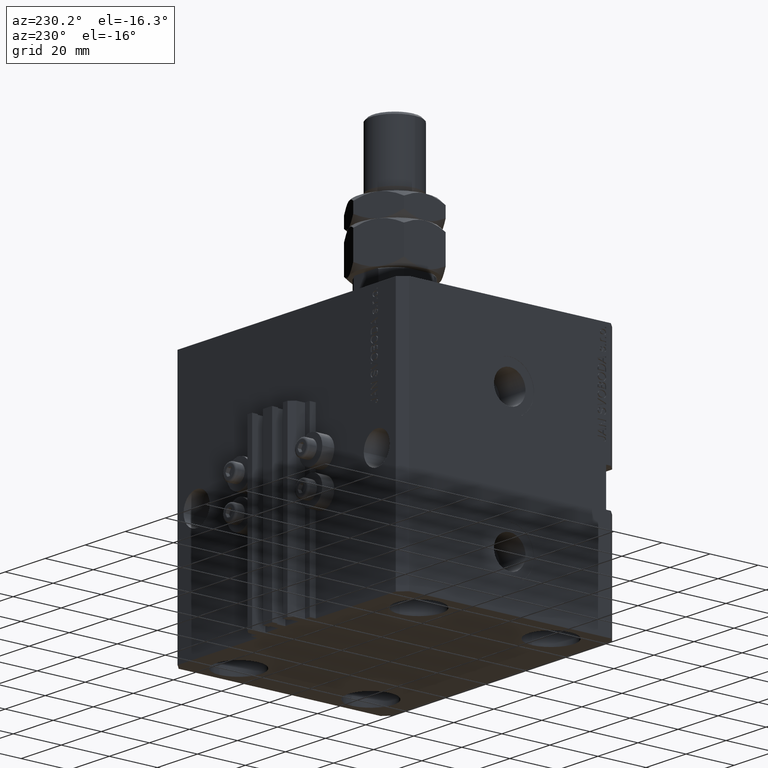
[diagram: clean part render]
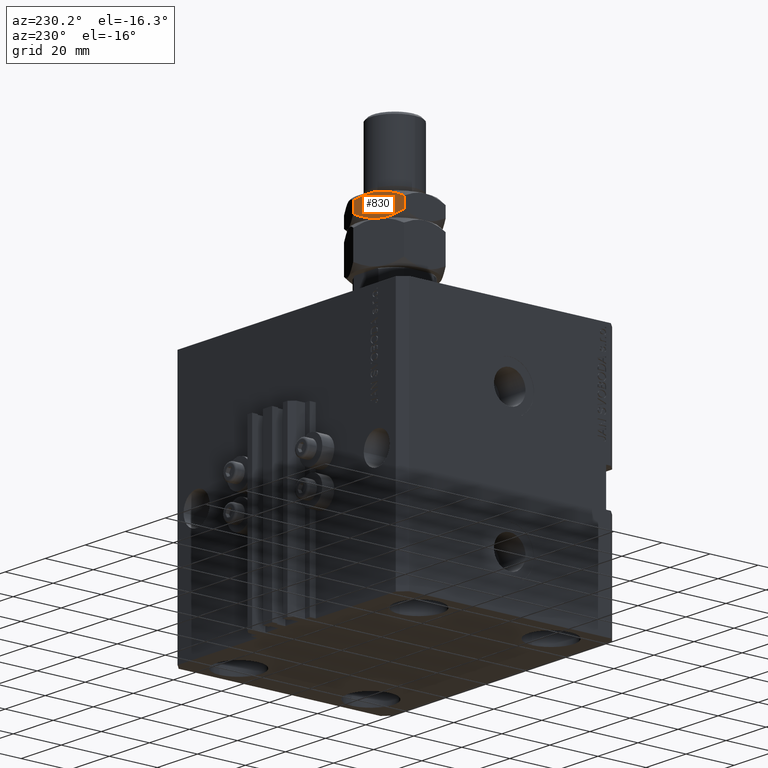
[diagram: same view with one face highlighted and labeled with its STEP entity id]
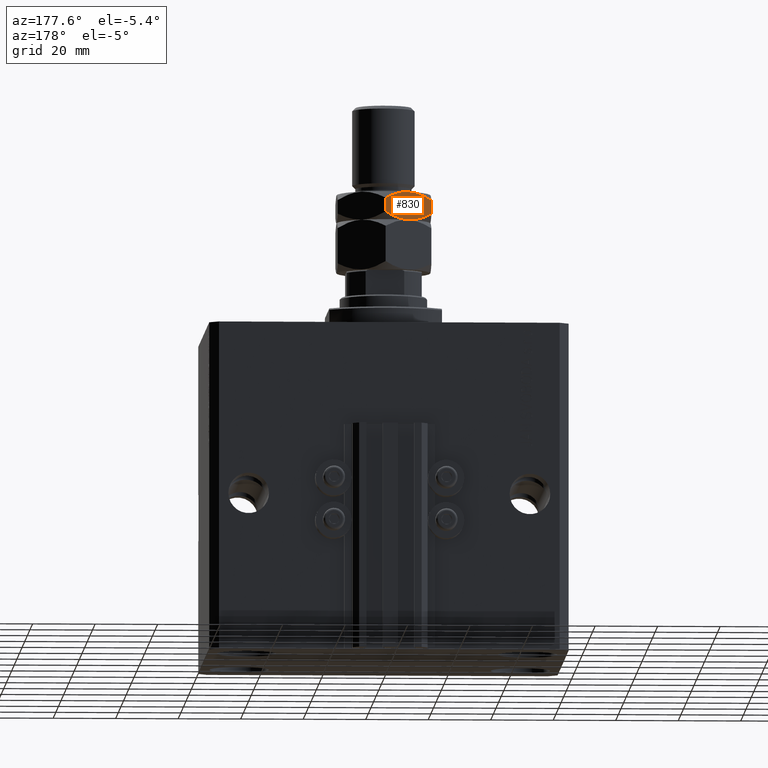
[diagram: same view with one face highlighted and labeled with its STEP entity id]
A machine part, auxiliary view. The second image highlights one B-rep face of the part: STEP entity #830.
A second angle (auxiliary view) of the same face is appended — the face is thin or edge-on in the first view.
In plain terms, the highlighted planar face has unit normal (0.5, -0.866, 0).
Its self-contained STEP definition (entity closure, byte-faithful):
#178 = CARTESIAN_POINT ( 'NONE',  ( -10.11832554202261214, 11.47869010025374514, 16.28380266194628945 ) ) ;
#830 = ADVANCED_FACE ( 'NONE', ( #49670 ), #37505, .F. ) ;
#1076 = CARTESIAN_POINT ( 'NONE',  ( -7.500000000000000000, 12.99038105676657651, 25.00000000000000000 ) ) ;
#1648 = CARTESIAN_POINT ( 'NONE',  ( -4.913081180497401945, 14.48393933357810859, 16.23032992193921942 ) ) ;
#1908 = CARTESIAN_POINT ( 'NONE',  ( -7.499999999999991118, 12.99038105676658184, 16.00000000000000000 ) ) ;
#2450 = CARTESIAN_POINT ( 'NONE',  ( -14.99999999999999645, 8.660254037844383745, 22.67949192431123961 ) ) ;
#3686 = CARTESIAN_POINT ( 'NONE',  ( -14.99999999999999645, 8.660254037844383745, 25.00000000000000000 ) ) ;
#4243 = CARTESIAN_POINT ( 'NONE',  ( -12.62116548881249223, 10.03367478323606754, 17.06448606774401000 ) ) ;
#4754 = CARTESIAN_POINT ( 'NONE',  ( 7.606663105073224303E-16, 17.32050807568877104, 22.67949192431123606 ) ) ;
#5409 = ORIENTED_EDGE ( 'NONE', *, *, #30485, .F. ) ;
#5455 = VECTOR ( 'NONE', #8971, 1000.000000000000000 ) ;
#5507 = VERTEX_POINT ( 'NONE', #19982 ) ;
#6682 = EDGE_CURVE ( 'NONE', #28844, #28413, #11295, .T. ) ;
#8453 = CARTESIAN_POINT ( 'NONE',  ( -1.176108425306640948, 16.64148155974180199, 23.35851844025820512 ) ) ;
#8971 = DIRECTION ( 'NONE',  ( -0.000000000000000000, -0.000000000000000000, -1.000000000000000000 ) ) ;
#9178 = CARTESIAN_POINT ( 'NONE',  ( -12.61607045183964360, 10.03661640420386369, 23.93952096862912526 ) ) ;
#9468 = EDGE_LOOP ( 'NONE', ( #28109, #46841, #5409, #15345, #33139, #47600 ) ) ;
#9668 = CARTESIAN_POINT ( 'NONE',  ( -8.804550678576912759, 12.23719837131868715, 25.00000000000000000 ) ) ;
#9957 = B_SPLINE_CURVE_WITH_KNOTS ( 'NONE', 3,
 ( #20151, #8453, #16088, #20399, #35907, #16583, #47807, #32103 ),
 .UNSPECIFIED., .F., .F.,
 ( 4, 2, 2, 4 ),
 ( 2.544309033646406718E-07, 0.004488823491893908710, 0.006733108022389178854, 0.008977392552884450733 ),
 .UNSPECIFIED. ) ;
#10283 = DIRECTION ( 'NONE',  ( 0.8660254037844385966, 0.5000000000000001110, 0.000000000000000000 ) ) ;
#10881 = B_SPLINE_CURVE_WITH_KNOTS ( 'NONE', 3,
 ( #1076, #9668, #40693, #9178, #32337, #43743 ),
 .UNSPECIFIED., .F., .F.,
 ( 4, 2, 4 ),
 ( 0.008977392552884450733, 0.01343452311421656706, 0.01789165367554868338 ),
 .UNSPECIFIED. ) ;
#11295 = LINE ( 'NONE', #3686, #48058 ) ;
#13047 = CARTESIAN_POINT ( 'NONE',  ( 3.803331551779305683E-16, 17.32050807568877104, 25.00000000000000000 ) ) ;
#13084 = CARTESIAN_POINT ( 'NONE',  ( -1.174746544192158293, 16.64226784216984356, 17.64226784216978672 ) ) ;
#15345 = ORIENTED_EDGE ( 'NONE', *, *, #42229, .F. ) ;
#15956 = VERTEX_POINT ( 'NONE', #17259 ) ;
#16088 = CARTESIAN_POINT ( 'NONE',  ( -2.378834511187503775, 15.94708733029709080, 23.93551393225599355 ) ) ;
#16583 = CARTESIAN_POINT ( 'NONE',  ( -6.176419610670697224, 13.75455055083996037, 24.94046462602529957 ) ) ;
#17259 = CARTESIAN_POINT ( 'NONE',  ( -7.500000000000000000, 12.99038105676657651, 25.00000000000000000 ) ) ;
#17535 = EDGE_CURVE ( 'NONE', #28413, #40007, #20329, .T. ) ;
#18689 = CARTESIAN_POINT ( 'NONE',  ( 3.803331551779305683E-16, 17.32050807568877104, 25.00000000000000000 ) ) ;
#19982 = CARTESIAN_POINT ( 'NONE',  ( 7.606663105073224303E-16, 17.32050807568877104, 18.32050807568876749 ) ) ;
#20151 = CARTESIAN_POINT ( 'NONE',  ( 7.606663105073224303E-16, 17.32050807568877104, 22.67949192431123606 ) ) ;
#20329 = B_SPLINE_CURVE_WITH_KNOTS ( 'NONE', 3,
 ( #31700, #34771, #4243, #34524, #178, #30964, #42625, #23584 ),
 .UNSPECIFIED., .F., .F.,
 ( 4, 2, 2, 4 ),
 ( 2.544309033649907082E-07, 0.004488823491893906975, 0.006733108022389182323, 0.008977392552884457672 ),
 .UNSPECIFIED. ) ;
#20399 = CARTESIAN_POINT ( 'NONE',  ( -4.247772349543485149, 14.86805556622358715, 24.55242859148697931 ) ) ;
#20982 = CARTESIAN_POINT ( 'NONE',  ( -2.383929548160346634, 15.94414570932928576, 17.06047903137087829 ) ) ;
#21706 = EDGE_CURVE ( 'NONE', #30985, #5507, #47855, .T. ) ;
#22172 = CARTESIAN_POINT ( 'NONE',  ( -14.99999999999999645, 8.660254037844383745, 18.32050807568876394 ) ) ;
#23584 = CARTESIAN_POINT ( 'NONE',  ( -7.499999999999991118, 12.99038105676658184, 16.00000000000000000 ) ) ;
#24805 = CARTESIAN_POINT ( 'NONE',  ( -6.195449321423078359, 13.74356374221446764, 15.99999999999999645 ) ) ;
#28109 = ORIENTED_EDGE ( 'NONE', *, *, #17535, .F. ) ;
#28413 = VERTEX_POINT ( 'NONE', #22172 ) ;
#28844 = VERTEX_POINT ( 'NONE', #2450 ) ;
#30485 = EDGE_CURVE ( 'NONE', #15956, #28844, #10881, .T. ) ;
#30648 = DIRECTION ( 'NONE',  ( -0.000000000000000000, -0.000000000000000000, -1.000000000000000000 ) ) ;
#30964 = CARTESIAN_POINT ( 'NONE',  ( -8.823580389329293894, 12.22621156269319442, 16.05953537397469688 ) ) ;
#30985 = VERTEX_POINT ( 'NONE', #4754 ) ;
#31700 = CARTESIAN_POINT ( 'NONE',  ( -14.99999999999999645, 8.660254037844383745, 18.32050807568876394 ) ) ;
#32103 = CARTESIAN_POINT ( 'NONE',  ( -7.500000000000000000, 12.99038105676657651, 25.00000000000000000 ) ) ;
#32337 = CARTESIAN_POINT ( 'NONE',  ( -13.82525345580783416, 9.338494271363309451, 23.35773215783022394 ) ) ;
#32672 = CARTESIAN_POINT ( 'NONE',  ( -7.499999999999991118, 12.99038105676658184, 16.00000000000000000 ) ) ;
#33139 = ORIENTED_EDGE ( 'NONE', *, *, #21706, .T. ) ;
#34524 = CARTESIAN_POINT ( 'NONE',  ( -10.75222765045650419, 11.11270654730956764, 16.44757140851302779 ) ) ;
#34771 = CARTESIAN_POINT ( 'NONE',  ( -13.82389157469335927, 9.339280553791359907, 17.64148155974179488 ) ) ;
#35765 = B_SPLINE_CURVE_WITH_KNOTS ( 'NONE', 3,
 ( #1908, #24805, #1648, #20982, #13084, #44092 ),
 .UNSPECIFIED., .F., .F.,
 ( 4, 2, 4 ),
 ( 0.008977392552884457672, 0.01343452311421657053, 0.01789165367554868338 ),
 .UNSPECIFIED. ) ;
#35907 = CARTESIAN_POINT ( 'NONE',  ( -4.881674457977377202, 14.50207201327940965, 24.71619733805370700 ) ) ;
#37305 = AXIS2_PLACEMENT_3D ( 'NONE', #18689, #49929, #10283 ) ;
#37505 = PLANE ( 'NONE',  #37305 ) ;
#40007 = VERTEX_POINT ( 'NONE', #32672 ) ;
#40693 = CARTESIAN_POINT ( 'NONE',  ( -10.08691881950258740, 11.49682277995504798, 24.76967007806078414 ) ) ;
#42229 = EDGE_CURVE ( 'NONE', #30985, #15956, #9957, .T. ) ;
#42625 = CARTESIAN_POINT ( 'NONE',  ( -8.156876182308238299, 12.61113341608665728, 16.00000000000000000 ) ) ;
#43743 = CARTESIAN_POINT ( 'NONE',  ( -14.99999999999999645, 8.660254037844383745, 22.67949192431123961 ) ) ;
#44092 = CARTESIAN_POINT ( 'NONE',  ( 7.606663105073224303E-16, 17.32050807568877104, 18.32050807568876749 ) ) ;
#45542 = EDGE_CURVE ( 'NONE', #40007, #5507, #35765, .T. ) ;
#46841 = ORIENTED_EDGE ( 'NONE', *, *, #6682, .F. ) ;
#47600 = ORIENTED_EDGE ( 'NONE', *, *, #45542, .F. ) ;
#47807 = CARTESIAN_POINT ( 'NONE',  ( -6.843123817691747490, 13.36962869744649751, 25.00000000000000000 ) ) ;
#47855 = LINE ( 'NONE', #13047, #5455 ) ;
#48058 = VECTOR ( 'NONE', #30648, 1000.000000000000000 ) ;
#49670 = FACE_OUTER_BOUND ( 'NONE', #9468, .T. ) ;
#49929 = DIRECTION ( 'NONE',  ( 0.5000000000000001110, -0.8660254037844385966, 0.000000000000000000 ) ) ;